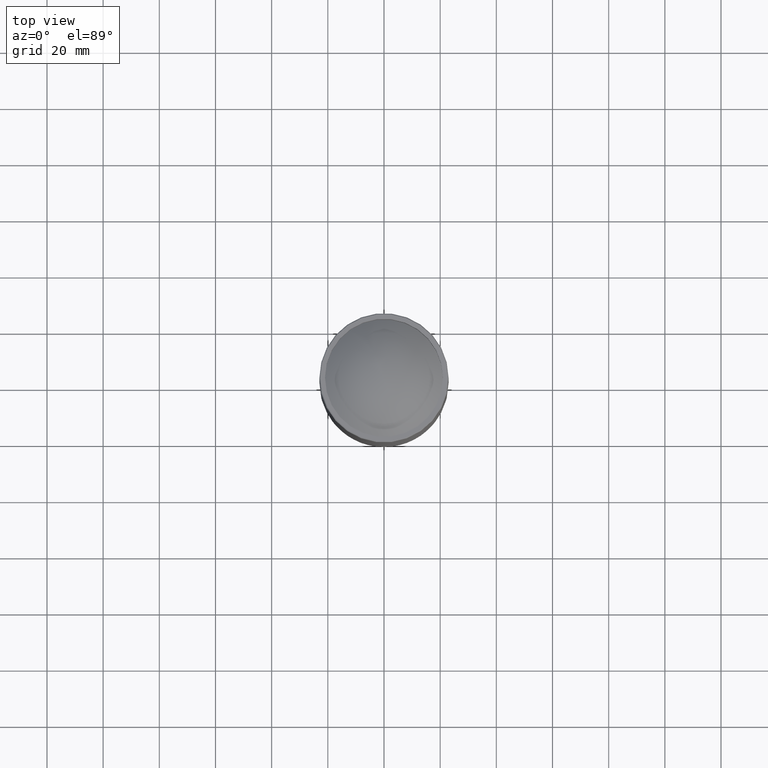
[diagram: clean part render]
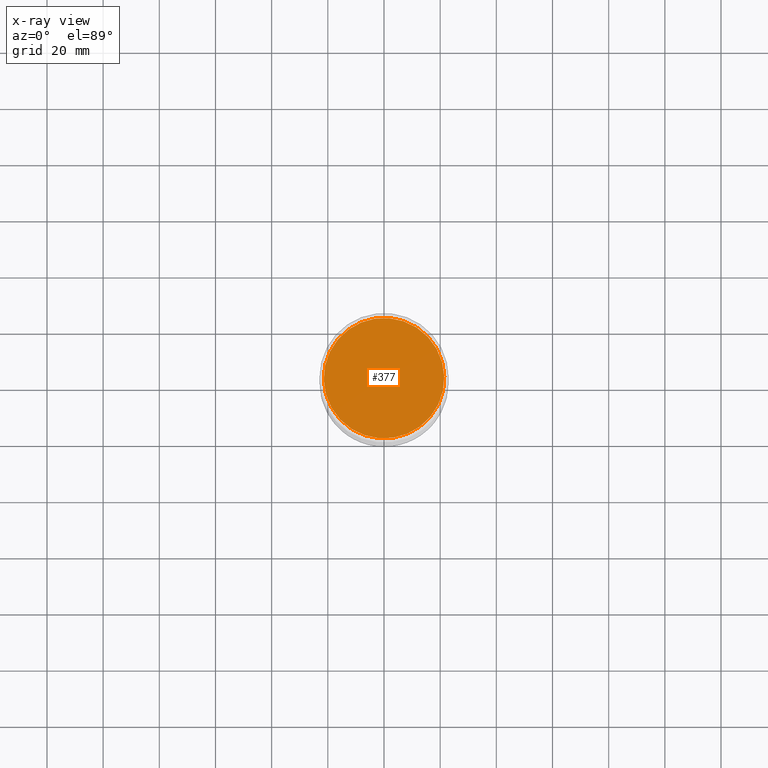
[diagram: x-ray — body ghosted, one internal face saturated and labeled with its STEP entity id]
A machine part, top view, then the same camera in x-ray: the body is ghosted and one INTERNAL B-rep face — a face not visible from any outside direction — is saturated and labeled: STEP entity #377.
In plain terms, the highlighted planar face has unit normal (-0, 0, 1).
Its self-contained STEP definition (entity closure, byte-faithful):
#49 = PLANE ( 'NONE',  #103 ) ;
#71 = CARTESIAN_POINT ( 'NONE',  ( -5.551115123125782702E-14, 6.938893903907228378E-15, -416.0000000000000568 ) ) ;
#103 = AXIS2_PLACEMENT_3D ( 'NONE', #476, #776, #702 ) ;
#172 = VERTEX_POINT ( 'NONE', #467 ) ;
#183 = FACE_OUTER_BOUND ( 'NONE', #623, .T. ) ;
#241 = CIRCLE ( 'NONE', #366, 21.45211006975307555 ) ;
#361 = DIRECTION ( 'NONE',  ( -1.232595164407830946E-32, -1.318609258053555361E-16, -1.000000000000000000 ) ) ;
#366 = AXIS2_PLACEMENT_3D ( 'NONE', #71, #361, #667 ) ;
#377 = ADVANCED_FACE ( 'NONE', ( #183 ), #49, .F. ) ;
#467 = CARTESIAN_POINT ( 'NONE',  ( 8.217209483082257293, -19.81591518845251798, -416.0000000000000568 ) ) ;
#476 = CARTESIAN_POINT ( 'NONE',  ( -7.311375404722708637, -63.84507486142586430, -416.0000000000000568 ) ) ;
#519 = EDGE_CURVE ( 'NONE', #172, #172, #241, .T. ) ;
#532 = ORIENTED_EDGE ( 'NONE', *, *, #519, .T. ) ;
#623 = EDGE_LOOP ( 'NONE', ( #532 ) ) ;
#667 = DIRECTION ( 'NONE',  ( 0.3830490080632379390, -0.9237280213470682178, 0.000000000000000000 ) ) ;
#702 = DIRECTION ( 'NONE',  ( 0.3830490080632378835, -0.9237280213470681067, 1.218036320871736945E-16 ) ) ;
#776 = DIRECTION ( 'NONE',  ( -1.848892746611746419E-32, 1.318609258053556101E-16, 1.000000000000000000 ) ) ;